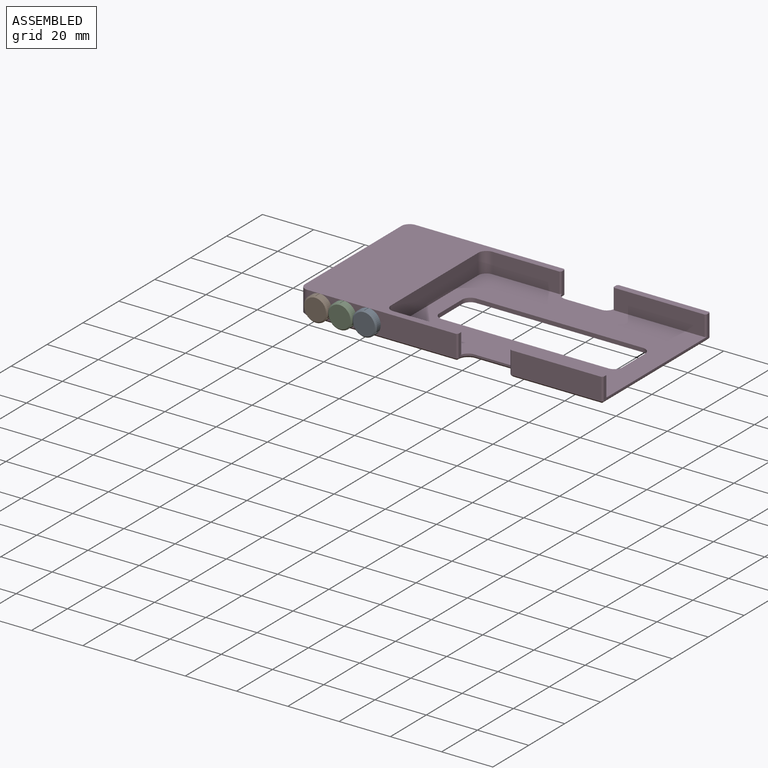
[diagram: assembled view]
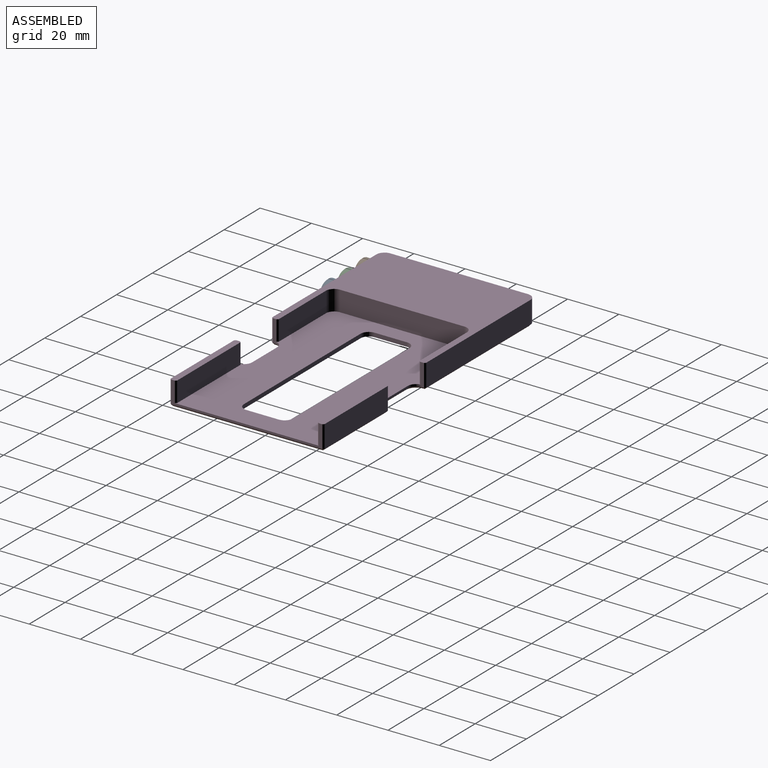
[diagram: assembled view, second angle]
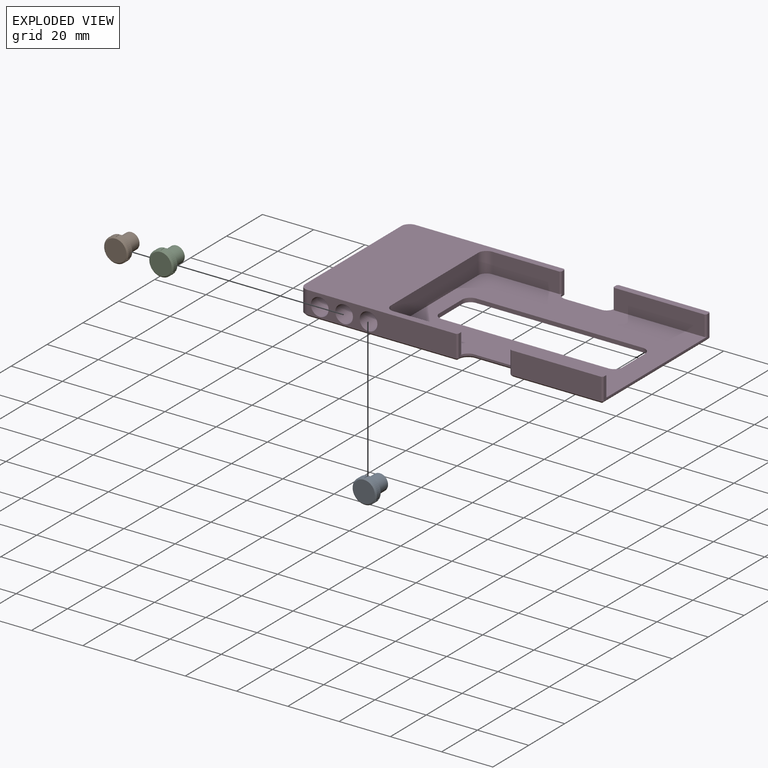
[diagram: exploded view]
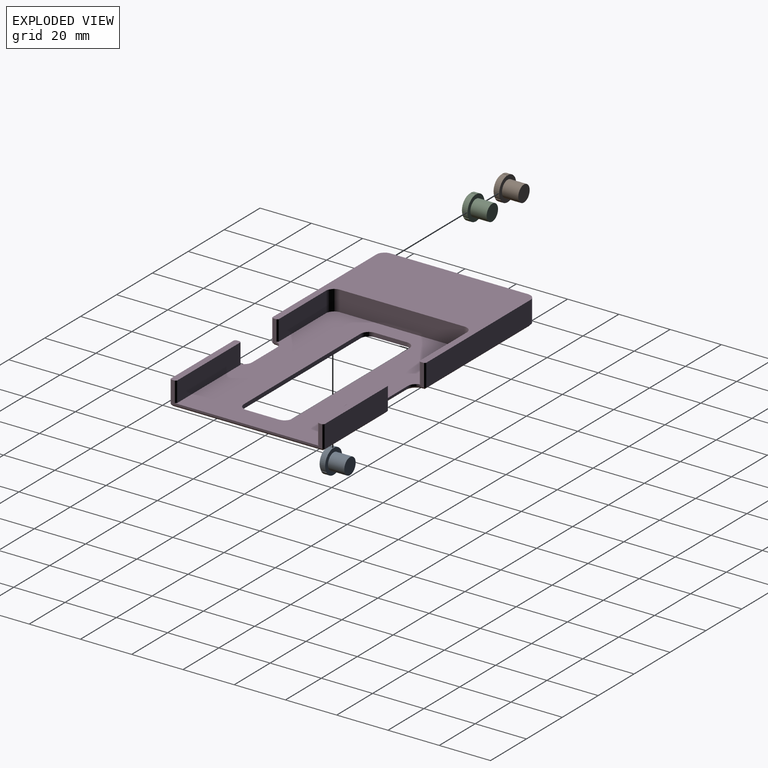
[diagram: exploded view, second angle]
ASSEMBLY  parts=4 mates=3
PART A: 23 faces, bbox 9.5x8.9x9.5 mm
  f0: cylinder r=4.76mm len=6.98mm, axis (0,1,0), area 19.5mm2, adj f3,f4,f9,f18
  f1: cylinder r=4.76mm len=6.98mm, axis (0,1,0), area 19.5mm2, adj f3,f4,f13,f19
  f2: cylinder r=4.76mm len=8.07mm, axis (0,1,0), area 19.5mm2, adj f3,f4,f8,f14
  f3: plane 9.53x9.52mm, normal (0,1,0), area 39.4mm2, adj f0,f1,f2,f6,f8,f9,f10,f11
  f4: cone r=4.25mm half-angle=45deg, axis (0,1,0), area 20.1mm2, adj f0,f1,f2,f5,f8,f9,f10,f11
  f5: plane 8.51x8.51mm, normal (0,-1,0), area 56.9mm2, adj f4
  f6: cylinder r=3.17mm len=6.35mm, axis (0,-1,0), area 126.7mm2, adj f3,f7
  f7: plane 6.35x6.35mm, normal (0,1,0), area 31.7mm2, adj f6
  f8: plane 2.13x0.08mm, normal (0.5,0,0.87), area 0.2mm2, adj f2,f3,f4,f11
  f9: plane 2.13x0.08mm, normal (-0.5,0,-0.87), area 0.2mm2, adj f0,f3,f4,f12
  f10: plane 2.22x0.16mm, normal (0.87,0,-0.5), area 0.4mm2, adj f3,f4,f11,f12
  f11: cylinder r=0.09mm len=2.22mm, axis (0,-1,0), area 0.3mm2, adj f3,f4,f8,f10
  f12: cylinder r=0.09mm len=2.22mm, axis (0,-1,0), area 0.3mm2, adj f3,f4,f9,f10
  f13: plane 2.13x0.08mm, normal (0.5,0,-0.87), area 0.2mm2, adj f1,f3,f4,f16
  f14: plane 2.13x0.08mm, normal (-0.5,0,0.87), area 0.2mm2, adj f2,f3,f4,f17
  f15: plane 2.22x0.16mm, normal (-0.87,0,-0.5), area 0.4mm2, adj f3,f4,f16,f17
  f16: cylinder r=0.09mm len=2.22mm, axis (0,-1,0), area 0.3mm2, adj f3,f4,f13,f15
  f17: cylinder r=0.09mm len=2.22mm, axis (0,-1,0), area 0.3mm2, adj f3,f4,f14,f15
  f18: plane 2.13x0.1mm, normal (-1,0,0), area 0.2mm2, adj f0,f3,f4,f22
  f19: plane 2.13x0.1mm, normal (1,0,0), area 0.2mm2, adj f1,f3,f4,f20
  f20: cylinder r=0.09mm len=2.22mm, axis (0,-1,0), area 0.3mm2, adj f3,f4,f19,f21
  f21: plane 2.22x0.19mm, normal (0,0,1), area 0.4mm2, adj f3,f4,f20,f22
  f22: cylinder r=0.09mm len=2.22mm, axis (0,-1,0), area 0.3mm2, adj f3,f4,f18,f21
PART B: same geometry as A
PART C: same geometry as A
PART D: 80 faces, bbox 118.4x60.1x9.5 mm
  f0: plane 86.6x57.33mm, normal (0,0,1), area 3334.3mm2, adj f1,f2,f3,f4,f5,f6,f7,f8
  f1: cylinder r=3.17mm len=3.18mm, axis (0,0,1), area 7.9mm2, adj f0,f2,f26,f27
  f2: plane 12.7x1.59mm, normal (-1,0,0), area 20.2mm2, adj f0,f1,f3,f27
  f3: cylinder r=3.17mm len=3.18mm, axis (0,0,1), area 7.9mm2, adj f0,f2,f4,f27
  f4: plane 65.01x1.59mm, normal (0,1,0), area 103.2mm2, adj f0,f3,f5,f27
  f5: cylinder r=3.17mm len=3.18mm, axis (0,0,1), area 7.9mm2, adj f0,f4,f6,f27
  f6: plane 12.7x1.59mm, normal (1,0,0), area 20.2mm2, adj f0,f5,f7,f27
  f7: cylinder r=3.17mm len=3.18mm, axis (0,0,1), area 7.9mm2, adj f0,f6,f26,f27
  f8: plane 8.76x1.52mm, normal (-1,0,0), area 12.8mm2, adj f0,f9,f35,f46,f47,f77
  f9: cylinder r=3.17mm len=3.18mm, axis (0,0,1), area 4.1mm2, adj f0,f8,f10,f75
  f10: plane 13.97x0.83mm, normal (0,1,0), area 11.5mm2, adj f0,f9,f11,f73
  f11: cylinder r=3.17mm len=3.18mm, axis (0,0,1), area 4.1mm2, adj f0,f10,f12,f71
  f12: plane 8.76x1.52mm, normal (1,0,0), area 12.8mm2, adj f0,f11,f33,f52,f53,f69
  f13: plane 58.04x8.76mm, normal (0,1,0), area 508.6mm2, adj f14,f33,f52,f65
  f14: cylinder r=3.17mm len=8.76mm, axis (0,0,1), area 43.7mm2, adj f13,f15,f33,f63
  f15: plane 53.71x8.76mm, normal (-1,0,0), area 470.7mm2, adj f14,f16,f33,f61
  f16: cylinder r=3.17mm len=8.76mm, axis (0,0,1), area 43.7mm2, adj f15,f17,f33,f59
  f17: plane 58.04x8.76mm, normal (0,-1,0), area 396.1mm2, adj f16,f33,f39,f41,f43,f55,f57
  f18: plane 8.76x1.52mm, normal (1,0,0), area 12.8mm2, adj f0,f19,f33,f54,f55,f58
  f19: cylinder r=3.17mm len=3.18mm, axis (0,0,1), area 4.1mm2, adj f0,f18,f20,f60
  f20: plane 13.97x0.83mm, normal (0,-1,0), area 11.5mm2, adj f0,f19,f21,f62
  f21: cylinder r=3.17mm len=3.18mm, axis (0,0,1), area 4.1mm2, adj f0,f20,f22,f64
  f22: plane 8.76x1.52mm, normal (-1,0,0), area 12.8mm2, adj f0,f21,f37,f44,f45,f66
  f23: plane 35.29x8.76mm, normal (0,-1,0), area 309.3mm2, adj f37,f44,f51,f70
  f24: plane 59.04x8.76mm, normal (1,0,0), area 72.9mm2, adj f0,f35,f37,f48,f49,f50,f51,f74
  f25: plane 35.29x8.76mm, normal (0,1,0), area 309.3mm2, adj f35,f47,f48,f78
  f26: plane 65.01x1.59mm, normal (0,-1,0), area 103.2mm2, adj f0,f1,f7,f27
  f27: plane 116.83x58.54mm, normal (0,0,-1), area 5300.2mm2, adj f1,f2,f3,f4,f5,f6,f7,f26
  f28: cylinder r=3.17mm len=7.94mm, axis (0,0,-1), area 39.6mm2, adj f0,f29,f32,f33
  f29: plane 26.29x7.94mm, normal (0,-1,0), area 208.7mm2, adj f0,f28,f33,f53
  f30: plane 26.29x7.94mm, normal (0,1,0), area 208.7mm2, adj f0,f31,f33,f54
  f31: cylinder r=3.17mm len=7.94mm, axis (0,0,-1), area 39.6mm2, adj f0,f30,f32,f33
  f32: plane 48.63x7.94mm, normal (1,0,0), area 386mm2, adj f0,f28,f31,f33
  f33: plane 61.72x60.06mm, normal (0,0,1), area 2058.6mm2, adj f12,f13,f14,f15,f16,f17,f18,f28
  f34: plane 35.29x7.94mm, normal (0,-1,0), area 280.1mm2, adj f0,f35,f46,f49
  f35: plane 36.31x2.54mm, normal (0,0,1), area 91.7mm2, adj f8,f24,f25,f34,f46,f47,f48,f49
  f36: plane 35.29x7.94mm, normal (0,1,0), area 280.1mm2, adj f0,f37,f45,f50
  f37: plane 36.31x2.54mm, normal (0,0,1), area 91.7mm2, adj f22,f23,f24,f36,f44,f45,f50,f51
  f38: plane 6.91x6.91mm, normal (0,-1,0), area 37.5mm2, adj f39
  f39: cylinder r=3.45mm len=57.52mm, axis (0,-1,0), area 1248.5mm2, adj f17,f38
  f40: plane 6.91x6.91mm, normal (0,-1,0), area 37.5mm2, adj f41
  f41: cylinder r=3.45mm len=57.52mm, axis (0,-1,0), area 1248.5mm2, adj f17,f40
  f42: plane 6.91x6.91mm, normal (0,-1,0), area 37.5mm2, adj f43
  f43: cylinder r=3.45mm len=57.52mm, axis (0,-1,0), area 1248.5mm2, adj f17,f42
  f44: plane 8.76x0.51mm, normal (-0.71,-0.71,0), area 6.3mm2, adj f22,f23,f37,f68
  f45: plane 7.94x0.51mm, normal (-0.71,0.71,0), area 5.7mm2, adj f0,f22,f36,f37
  f46: plane 7.94x0.51mm, normal (-0.71,-0.71,0), area 5.7mm2, adj f0,f8,f34,f35
  f47: plane 8.76x0.51mm, normal (-0.71,0.71,0), area 6.3mm2, adj f8,f25,f35,f79
  f48: plane 8.76x0.51mm, normal (0.71,0.71,0), area 6.3mm2, adj f24,f25,f35,f76
  f49: plane 7.94x0.51mm, normal (0.71,-0.71,0), area 5.7mm2, adj f0,f24,f34,f35
  f50: plane 7.94x0.51mm, normal (0.71,0.71,0), area 5.7mm2, adj f0,f24,f36,f37
  f51: plane 8.76x0.51mm, normal (0.71,-0.71,0), area 6.3mm2, adj f23,f24,f37,f72
  f52: plane 8.76x0.51mm, normal (0.71,0.71,0), area 6.3mm2, adj f12,f13,f33,f67
  f53: plane 7.94x0.51mm, normal (0.71,-0.71,0), area 5.7mm2, adj f0,f12,f29,f33
  f54: plane 7.94x0.51mm, normal (0.71,0.71,0), area 5.7mm2, adj f0,f18,f30,f33
  f55: plane 8.76x0.51mm, normal (0.71,-0.71,0), area 6.3mm2, adj f17,f18,f33,f56
  f56: plane 0.82x0.82mm, normal (0.5,-0.5,-0.71), area 0.4mm2, adj f27,f55,f57,f58
  f57: plane 58.04x0.76mm, normal (0,-0.71,-0.71), area 62.4mm2, adj f17,f27,f56,f59
  f58: plane 0.86x0.76mm, normal (0.71,0,-0.71), area 0.8mm2, adj f18,f27,f56,f60
  f59: cone r=2.41mm half-angle=45deg, axis (0,0,1), area 4.7mm2, adj f16,f27,f57,f61
  f60: cone r=3.94mm half-angle=45deg, axis (0,0,-1), area 6mm2, adj f19,f27,f58,f62
  f61: plane 53.71x0.76mm, normal (-0.71,0,-0.71), area 57.9mm2, adj f15,f27,f59,f63
  f62: plane 13.97x0.76mm, normal (0,-0.71,-0.71), area 15.1mm2, adj f20,f27,f60,f64
  f63: cone r=3.17mm half-angle=45deg, axis (0,0,1), area 4.7mm2, adj f14,f27,f61,f65
  f64: cone r=3.94mm half-angle=45deg, axis (0,0,-1), area 6mm2, adj f21,f27,f62,f66
  f65: plane 58.04x0.76mm, normal (0,0.71,-0.71), area 62.4mm2, adj f13,f27,f63,f67
  f66: plane 0.86x0.76mm, normal (-0.71,0,-0.71), area 0.8mm2, adj f22,f27,f64,f68
  f67: plane 0.82x0.82mm, normal (0.5,0.5,-0.71), area 0.4mm2, adj f27,f52,f65,f69
  f68: plane 0.82x0.82mm, normal (-0.5,-0.5,-0.71), area 0.4mm2, adj f27,f44,f66,f70
  f69: plane 0.86x0.76mm, normal (0.71,0,-0.71), area 0.8mm2, adj f12,f27,f67,f71
  f70: plane 35.29x0.76mm, normal (0,-0.71,-0.71), area 37.7mm2, adj f23,f27,f68,f72
  f71: cone r=3.17mm half-angle=45deg, axis (0,0,-1), area 6mm2, adj f11,f27,f69,f73
  f72: plane 0.82x0.82mm, normal (0.5,-0.5,-0.71), area 0.4mm2, adj f27,f51,f70,f74
  f73: plane 13.97x0.76mm, normal (0,0.71,-0.71), area 15.1mm2, adj f10,f27,f71,f75
  f74: plane 59.04x0.76mm, normal (0.71,0,-0.71), area 63.3mm2, adj f24,f27,f72,f76
  f75: cone r=3.17mm half-angle=45deg, axis (0,0,-1), area 6mm2, adj f9,f27,f73,f77
  f76: plane 0.82x0.82mm, normal (0.5,0.5,-0.71), area 0.4mm2, adj f27,f48,f74,f78
  f77: plane 0.86x0.76mm, normal (-0.71,0,-0.71), area 0.8mm2, adj f8,f27,f75,f79
  f78: plane 35.29x0.76mm, normal (0,0.71,-0.71), area 37.7mm2, adj f25,f27,f76,f79
  f79: plane 0.82x0.82mm, normal (-0.5,0.5,-0.71), area 0.4mm2, adj f27,f47,f77,f78
PLACE A t=(-4.76,-2.54,3.18)mm
PLACE B t=(-23.81,-2.54,3.18)mm
PLACE C t=(-14.29,-2.54,3.18)mm
PLACE D at identity
MATE fastened B.f0 <-> D.f39  axis (0,1,0) through (-23.81,-2.54,3.18)mm
MATE fastened C.f0 <-> D.f41  axis (0,-1,0) through (-14.29,-2.54,3.18)mm
MATE fastened A.f0 <-> D.f43  axis (0,-1,0) through (-4.76,-2.54,3.18)mm
